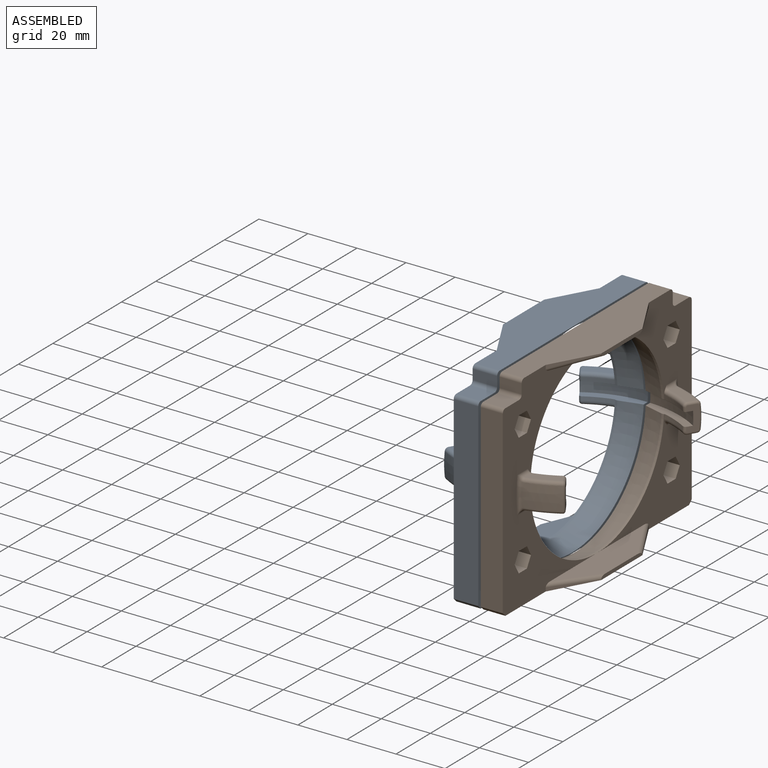
[diagram: assembled view]
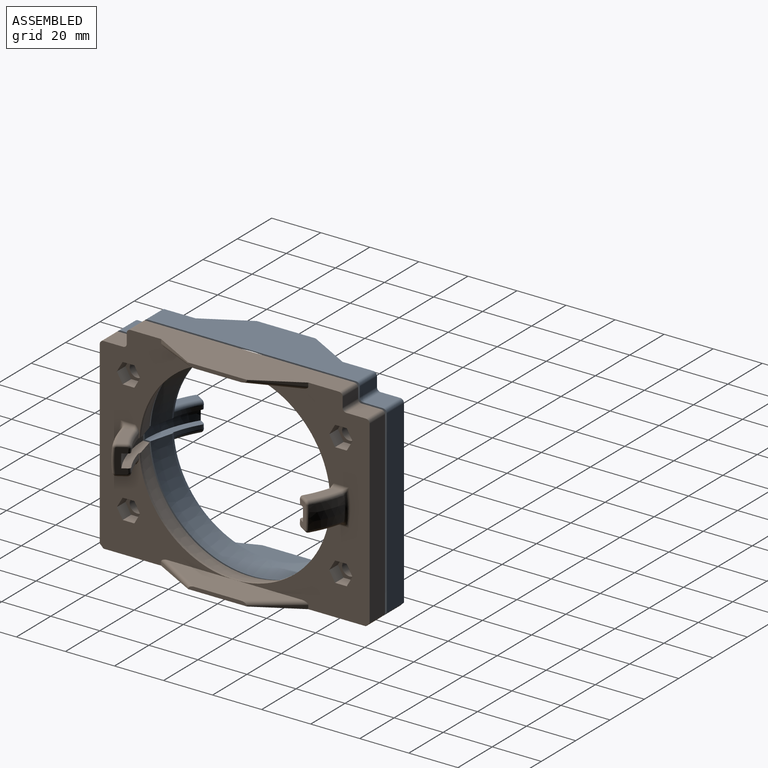
[diagram: assembled view, second angle]
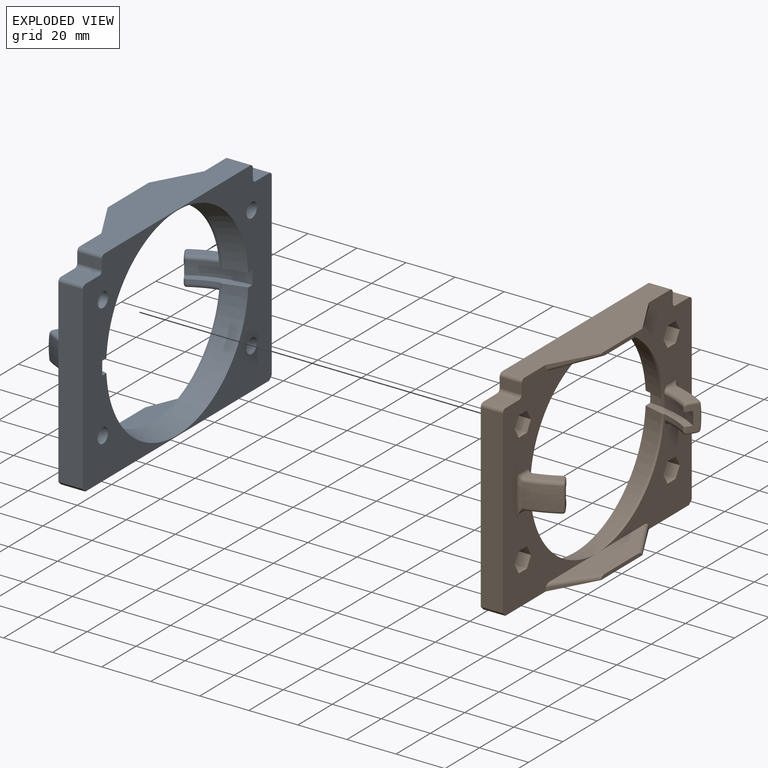
[diagram: exploded view]
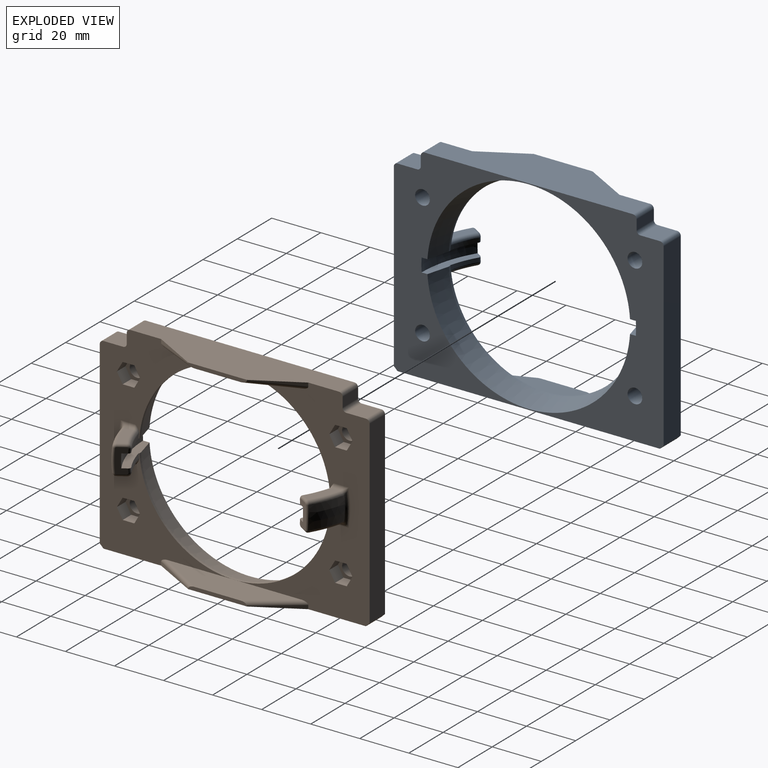
[diagram: exploded view, second angle]
FCSTD DOCUMENT  (FreeCAD 1.0R39319 (Git))
Label: Assembly_Flight-Cam-Screen
License: All rights reserved
LicenseURL: https://en.wikipedia.org/wiki/All_rights_reserved
objects: App::FeaturePython×5, App::Link×3, Assembly::AssemblyLink×1, Assembly::JointGroup×1, Assembly::AssemblyObject×1
EXTERNAL_REF file=../Part/Print/EyeScreen.FCStd obj=Part
EXTERNAL_REF file=../Part/Print/EyeScreen_Clamp.FCStd obj=Part
EXTERNAL_REF file=Assembly_Flight-Cam.FCStd obj=Assembly
EXTERNAL_REF file=Assembly_Flight-Cam.FCStd obj=IMX296_MPI_Eyeball_6mm001

FEATURE [App::Link] EyeScreen
  LinkPlacement = pos=(0,0,0) rot=(0,0,1;3.14159rad)
  LinkedObject = -> <external ../Part/Print/EyeScreen.FCStd>#Part
  Placement = pos=(0,0,0) rot=(0,0,1;3.14159rad)
FEATURE [App::Link] EyeScreen_Clamp
  LinkPlacement = pos=(6.23e-14,1.5e-13,-2.196e-13) rot=(0,0,1;0rad)
  LinkedObject = -> <external ../Part/Print/EyeScreen_Clamp.FCStd>#Part
  Placement = pos=(6.23e-14,1.5e-13,-2.196e-13) rot=(0,0,1;0rad)
FEATURE [App::FeaturePython] GroundedJoint  # Assembly grounded joint (typed FeaturePython)
  ObjectToGround = -> EyeScreen
FEATURE [App::FeaturePython] Joint  label="Distance"  # Assembly joint (typed FeaturePython)
  Activated = true
  AngleMax = 0
  AngleMin = 0
  Detach1 = false
  Detach2 = false
  Distance = -1
  Distance2 = 0
  EnableAngleMax = false
  EnableAngleMin = false
  EnableLengthMax = false
  EnableLengthMin = false
  JointType = 5 (Distance)
  LengthMax = 0
  LengthMin = 0
  Placement1 = pos=(1,-2.077e-13,-1.63309) rot=(0.707107,0,0.707107;3.14159rad)
  Placement2 = pos=(4.82e-14,-4.807e-13,-1.66411) rot=(0.707107,0,-0.707107;3.14159rad)
  Reference1 = -> Assembly [EyeScreen_Clamp.Body.Face3,EyeScreen_Clamp.Body.Edge29]
  Reference2 = -> Assembly [EyeScreen.Body.Face105,EyeScreen.Body.Vertex111]
FEATURE [App::FeaturePython] Joint001  label="Cylindrical"  # Assembly joint (typed FeaturePython)
  Activated = true
  AngleMax = 0
  AngleMin = 0
  Detach1 = false
  Detach2 = false
  Distance = 0
  Distance2 = 0
  EnableAngleMax = false
  EnableAngleMin = false
  EnableLengthMax = false
  EnableLengthMin = false
  JointType = 2 (Cylindrical)
  LengthMax = 0
  LengthMin = 0
  Placement1 = pos=(3,-43.3013,25) rot=(0.57735,-0.57735,-0.57735;2.0944rad)
  Placement2 = pos=(5,43.3013,25) rot=(0.57735,0.57735,0.57735;2.0944rad)
  Reference1 = -> Assembly [EyeScreen_Clamp.Body.Face32,EyeScreen_Clamp.Body.Face32]
  Reference2 = -> Assembly [EyeScreen.Body.Face28,EyeScreen.Body.Face28]
FEATURE [App::FeaturePython] Joint002  label="Cylindrical001"  # Assembly joint (typed FeaturePython)
  Activated = true
  AngleMax = 0
  AngleMin = 0
  Detach1 = false
  Detach2 = false
  Distance = 0
  Distance2 = 0
  EnableAngleMax = false
  EnableAngleMin = false
  EnableLengthMax = false
  EnableLengthMin = false
  JointType = 2 (Cylindrical)
  LengthMax = 0
  LengthMin = 0
  Placement1 = pos=(3,-43.3013,-25) rot=(0.57735,-0.57735,0.57735;4.18879rad)
  Placement2 = pos=(5,43.3013,-25) rot=(0.57735,0.57735,-0.57735;4.18879rad)
  Reference1 = -> Assembly [EyeScreen_Clamp.Body.Face31,EyeScreen_Clamp.Body.Face31]
  Reference2 = -> Assembly [EyeScreen.Body.Face29,EyeScreen.Body.Face29]
FEATURE [App::Link] IMX296_MPI_Eyeball_6mm001  label="IMX296-MPI_Eyeball_6mm001"
  LinkedObject = -> <external Assembly_Flight-Cam.FCStd>#IMX296_MPI_Eyeball_6mm001
FEATURE [Assembly::AssemblyLink] Assembly_Flight_Cam  label="Assembly_Flight-Cam"
  Group = -> [IMX296_MPI_Eyeball_6mm001]
  LinkedObject = -> <external Assembly_Flight-Cam.FCStd>#Assembly
  Origin = -> Origin001
  Placement = pos=(9.2e-15,0,0) rot=(0,-1,0;1.5708rad)
  Rigid = true
FEATURE [App::FeaturePython] Joint003  label="Ball"  # Assembly joint (typed FeaturePython)
  Activated = true
  AngleMax = 0
  AngleMin = 0
  Detach1 = false
  Detach2 = false
  Distance = 0
  Distance2 = 0
  EnableAngleMax = false
  EnableAngleMin = false
  EnableLengthMax = false
  EnableLengthMin = false
  JointType = 4 (Ball)
  LengthMax = 0
  LengthMin = 0
  Placement1 = pos=(0,0,0) rot=(1,0,0;3.14159rad)
  Placement2 = pos=(-9.2e-15,0,0) rot=(0.707107,0,0.707107;3.14159rad)
  Reference1 = -> Assembly [Assembly_Flight_Cam.IMX296_MPI_Eyeball_6mm001.Face1,Assembly_Flight_Cam.IMX296_MPI_Eyeball_6mm001.Face1]
  Reference2 = -> Assembly [EyeScreen.Body.Edge142,EyeScreen.Body.Edge142]
FEATURE [Assembly::JointGroup] Joints
  Group = -> [GroundedJoint,Joint,Joint001,Joint002,Joint003]
FEATURE [Assembly::AssemblyObject] Assembly  label="Assembly_Flight-Cam-Screen"
  Group = -> [Joints,EyeScreen,EyeScreen_Clamp,GroundedJoint,Joint,Joint001,Joint002,Assembly_Flight_Cam,Joint003]
  Origin = -> Origin
  Type = Assembly_Flight-Cam-Screen

RESOLVED EXTERNAL PARTS (link-assembly join: the EXTERNAL_REF files above that resolve inside this repo's crawl, each included once):
---- part ../Part/Print/EyeScreen.FCStd = doc fcstd_b461cd2e0dd9 ----
FCSTD DOCUMENT  (FreeCAD 1.0R39319 (Git))
Label: EyeScreen
License: All rights reserved
LicenseURL: https://en.wikipedia.org/wiki/All_rights_reserved
objects: Sketcher::SketchObject×10, PartDesign::Fillet×6, PartDesign::Pocket×4, PartDesign::Mirrored×3, PartDesign::Pad×2, PartDesign::Groove×2, PartDesign::CoordinateSystem×2, PartDesign::Chamfer×1, PartDesign::Revolution×1, PartDesign::Body×1, App::Part×1
note: 77 computed .brp shape members not serialized (recipe doc carries the construction recipe); baked Part::Feature solids carry a one-line shape summary decoded from their .brp

FEATURE [Sketcher::SketchObject] Sketch
  ArcFitTolerance = 1e-06
  AttachmentSupport = -> [YZ_Plane001]
  FullyConstrained = true
  MakeInternals = false
  MapMode = 5
  Placement = pos=(0,0,0) rot=(0.57735,0.57735,0.57735;2.0944rad)
  sketch-geometry (4):
    g0: LineSegment StartX=0 StartY=41.75 StartZ=0 EndX=0 EndY=-41.75 EndZ=0
    g1: LineSegment StartX=0 StartY=-41.75 StartZ=0 EndX=55 EndY=-41.75 EndZ=0
    g2: LineSegment StartX=55 StartY=-41.75 StartZ=0 EndX=55 EndY=41.75 EndZ=0
    g3: LineSegment StartX=55 StartY=41.75 StartZ=0 EndX=0 EndY=41.75 EndZ=0
  constraints (11):
    c: Coincident(g0,g1)
    c: Coincident(g1,g2)
    c: Coincident(g2,g3)
    c: Coincident(g3,g0)
    c: Vertical(g0)
    c: Horizontal(g1)
    c: Horizontal(g3)
    c: PointOnObject(g0,g-2)
    c: Distance(g1,g3) = 83.5
    c: Distance(g0,g2) = 55
    c: Symmetric(g2,g1,g-1)
FEATURE [PartDesign::Pad] Pad
  Direction = (1,0,0)
  Length = 10
  Length2 = 10
  Placement = pos=(0,0,0) rot=(1,1,1;2.0944rad)
  Profile = -> Sketch
  ReferenceAxis = -> Sketch [N_Axis]
  Refine = true
  Suppressed = false
  Type = 0
FEATURE [PartDesign::Chamfer] Chamfer
  Angle = 45
  Base = -> Pad [Edge5]
  BaseFeature = -> Pad
  ChamferType = 0
  FlipDirection = false
  Placement = pos=(0,0,0) rot=(1,1,1;2.0944rad)
  Refine = true
  Size = 1.5
  Size2 = 1
  SupportTransform = false
  Suppressed = false
  UseAllEdges = false
FEATURE [Sketcher::SketchObject] Sketch001
  ArcFitTolerance = 1e-06
  AttachmentSupport = -> [Chamfer]
  FullyConstrained = true
  MakeInternals = false
  MapMode = 5
  Placement = pos=(10,-2.2e-15,1.1e-15) rot=(0.57735,0.57735,0.57735;2.0944rad)
  sketch-geometry (2):
    g0: Circle CenterX=43.3013 CenterY=25 CenterZ=0 NormalX=0 NormalY=0 NormalZ=1 AngleXU=0 Radius=3
    g1: LineSegment [constr] StartX=43.3013 StartY=25 StartZ=0 EndX=0 EndY=0 EndZ=0
  constraints (5):
    c: Coincident(g1,g0)
    c: Coincident(g1,g-1)
    c: Angle(g-1,g1) = 0.523599
    c: Diameter(g0) = 6
    c: Distance(g0,g-1) = 50
FEATURE [PartDesign::Pocket] Pocket
  BaseFeature = -> Chamfer
  Direction = (-1,0,0)
  Length = 5
  Length2 = 5
  Placement = pos=(0,0,0) rot=(1,1,1;2.0944rad)
  Profile = -> Sketch001
  ReferenceAxis = -> Sketch001 [N_Axis]
  Refine = true
  Suppressed = false
  Type = 1
FEATURE [PartDesign::Mirrored] Mirrored
  BaseFeature = -> Pocket
  MirrorPlane = -> XY_Plane001
  Originals = -> [Pocket]
  Placement = pos=(0,0,0) rot=(1,1,1;2.0944rad)
  Refine = true
  Suppressed = false
  TransformMode = 0
FEATURE [Sketcher::SketchObject] Sketch002
  ArcFitTolerance = 1e-06
  AttachmentSupport = -> [YZ_Plane001]
  FullyConstrained = true
  MakeInternals = false
  MapMode = 5
  Placement = pos=(0,0,0) rot=(0.57735,0.57735,0.57735;2.0944rad)
  sketch-geometry (4):
    g0: ArcOfCircle CenterX=0 CenterY=1.83e-14 CenterZ=0 NormalX=0 NormalY=0 NormalZ=1 AngleXU=0 Radius=47 StartAngle=6.15518 EndAngle=6.41119
    g1: LineSegment StartX=40.0531 StartY=6 StartZ=0 EndX=46.6154 EndY=6 EndZ=0
    g2: LineSegment StartX=40.0531 StartY=-6 StartZ=0 EndX=46.6154 EndY=-6 EndZ=0
    g3: ArcOfCircle CenterX=0 CenterY=1.83e-14 CenterZ=0 NormalX=0 NormalY=0 NormalZ=1 AngleXU=0 Radius=40.5 StartAngle=6.13449 EndAngle=6.43188
  constraints (12):
    c: Coincident(g1,g0)
    c: Coincident(g2,g0)
    c: Distance(g2,g1) = 12
    c: Horizontal(g1)
    c: Symmetric(g0,g0,g-1)
    c: Horizontal(g2)
    c: Coincident(g3,g1)
    c: Coincident(g3,g2)
    c: Coincident(g3,g0)
    c: Coincident(g0,g-1)
    c: Radius(g3) = 40.5
    c: Radius(g0) = 47
FEATURE [PartDesign::Revolution] Revolution
  Angle = 32
  Angle2 = 60
  Axis = (0,0,1)
  Base = (0,0,0)
  BaseFeature = -> Mirrored
  Placement = pos=(0,0,0) rot=(1,1,1;2.0944rad)
  Profile = -> Sketch002
  ReferenceAxis = -> Sketch002 [V_Axis]
  Refine = true
  Reversed = true
  Suppressed = false
  Type = 0
FEATURE [Sketcher::SketchObject] Sketch003
  ArcFitTolerance = 1e-06
  AttachmentSupport = -> [XZ_Plane001]
  ExternalGeometry = -> [Revolution]
  FullyConstrained = true
  MakeInternals = false
  MapMode = 5
  Placement = pos=(0,0,0) rot=(1,0,0;1.5708rad)
  sketch-geometry (5):
    g0: LineSegment StartX=0 StartY=0 StartZ=0 EndX=0 EndY=41.3865 EndZ=0
    g1: LineSegment StartX=0 StartY=41.3865 StartZ=0 EndX=9 EndY=38.975 EndZ=0
    g2: LineSegment StartX=9 StartY=38.975 StartZ=0 EndX=10 EndY=38.975 EndZ=0
    g3: LineSegment StartX=10 StartY=38.975 StartZ=0 EndX=10 EndY=0 EndZ=0
    g4: LineSegment StartX=10 StartY=0 StartZ=0 EndX=0 EndY=0 EndZ=0
  constraints (14):
    c: Coincident(g-1,g0)
    c: PointOnObject(g0,g-2)
    c: Coincident(g0,g1)
    c: Coincident(g1,g2)
    c: Coincident(g2,g3)
    c: Vertical(g3)
    c: Coincident(g3,g4)
    c: Coincident(g4,g0)
    c: Horizontal(g4)
    c: PointOnObject(g2,g-3)
    c: Horizontal(g2)
    c: Distance(g1,g0) = 9
    c: Angle(g1,g4) = 0.261799
    c: Distance(g4,g2) = 38.975
FEATURE [PartDesign::Groove] Groove
  Angle = 360
  Angle2 = 60
  Axis = (1,0,0)
  Base = (0,0,0)
  BaseFeature = -> Revolution
  Placement = pos=(0,0,0) rot=(1,1,1;2.0944rad)
  Profile = -> Sketch003
  ReferenceAxis = -> X_Axis001
  Refine = true
  Suppressed = false
  Type = 0
FEATURE [Sketcher::SketchObject] Sketch004
  ArcFitTolerance = 1e-06
  AttachmentSupport = -> [YZ_Plane001]
  FullyConstrained = true
  MakeInternals = false
  MapMode = 5
  Placement = pos=(0,0,0) rot=(0.57735,0.57735,0.57735;2.0944rad)
FEATURE [Sketcher::SketchObject] Sketch005
  ArcFitTolerance = 1e-06
  AttachmentSupport = -> [Groove]
  ExternalGeometry = -> [Groove]
  FullyConstrained = true
  MakeInternals = false
  MapMode = 5
  Placement = pos=(-1.21e-14,7.5e-15,0) rot=(0.787007,0.436245,0.436245;1.80806rad)
  sketch-geometry (4):
    g0: LineSegment StartX=0 StartY=2.75 StartZ=0 EndX=0 EndY=-2.75 EndZ=0
    g1: LineSegment StartX=0 StartY=-2.75 StartZ=0 EndX=43.6635 EndY=-2.75 EndZ=0
    g2: LineSegment StartX=0 StartY=2.75 StartZ=0 EndX=43.6635 EndY=2.75 EndZ=0
    g3: ArcOfCircle CenterX=0 CenterY=0 CenterZ=0 NormalX=0 NormalY=0 NormalZ=1 AngleXU=0 Radius=43.75 StartAngle=6.22029 EndAngle=6.34608
  constraints (12):
    c: PointOnObject(g0,g-2)
    c: PointOnObject(g0,g-2)
    c: Coincident(g0,g1)
    c: Horizontal(g1)
    c: Coincident(g3,g2)
    c: Coincident(g1,g3)
    c: Coincident(g-1,g3)
    c: Distance(g3,g-4) = 3.25
    c: Distance(g-5,g1) = 3.25
    c: Horizontal(g2)
    c: Distance(g-3,g2) = 3.25
    c: Coincident(g2,g0)
FEATURE [PartDesign::Groove] Groove001
  Angle = 360
  Angle2 = 60
  Axis = (-2e-16,-1e-16,1)
  Base = (-1.21e-14,7.5e-15,0)
  BaseFeature = -> Groove
  Placement = pos=(0,0,0) rot=(1,1,1;2.0944rad)
  Profile = -> Sketch005
  ReferenceAxis = -> Sketch005 [V_Axis]
  Refine = true
  Suppressed = false
  Type = 0
FEATURE [Sketcher::SketchObject] Sketch006
  ArcFitTolerance = 1e-06
  AttachmentSupport = -> [Groove001]
  ExternalGeometry = -> [Groove001]
  FullyConstrained = true
  MakeInternals = false
  MapMode = 5
  Placement = pos=(10,-1.11e-14,5.6e-15) rot=(0.57735,0.57735,0.57735;2.0944rad)
  sketch-geometry (4):
    g0: LineSegment StartX=44 StartY=42.75 StartZ=0 EndX=44 EndY=34.75 EndZ=0
    g1: LineSegment StartX=44 StartY=34.75 StartZ=0 EndX=56 EndY=34.75 EndZ=0
    g2: LineSegment StartX=56 StartY=34.75 StartZ=0 EndX=56 EndY=42.75 EndZ=0
    g3: LineSegment StartX=56 StartY=42.75 StartZ=0 EndX=44 EndY=42.75 EndZ=0
  constraints (12):
    c: Coincident(g0,g1)
    c: Coincident(g1,g2)
    c: Coincident(g2,g3)
    c: Coincident(g3,g0)
    c: Vertical(g0)
    c: Vertical(g2)
    c: Horizontal(g1)
    c: Horizontal(g3)
    c: Distance(g3,g-3) = 1
    c: Distance(g2,g-4) = 1
    c: Distance(g3,g1) = 8
    c: Distance(g2,g0) = 12
FEATURE [PartDesign::Pocket] Pocket001
  BaseFeature = -> Groove001
  Direction = (-1,1e-15,1e-16)
  Length = 5
  Length2 = 5
  Placement = pos=(0,0,0) rot=(1,1,1;2.0944rad)
  Profile = -> Sketch006
  ReferenceAxis = -> Sketch006 [N_Axis]
  Refine = true
  Suppressed = false
  Type = 1
FEATURE [PartDesign::Fillet] Fillet
  Base = -> Pocket001 [Edge28,Edge27,Edge29]
  BaseFeature = -> Pocket001
  Placement = pos=(0,0,0) rot=(1,1,1;2.0944rad)
  Radius = 1.5
  Refine = true
  SupportTransform = false
  Suppressed = false
  UseAllEdges = false
FEATURE [PartDesign::Fillet] Fillet001
  Base = -> Fillet [Edge72,Edge77,Edge22,Edge44]
  BaseFeature = -> Fillet
  Placement = pos=(0,0,0) rot=(1,1,1;2.0944rad)
  Radius = 1.5
  Refine = true
  SupportTransform = false
  Suppressed = false
  UseAllEdges = false
FEATURE [PartDesign::Fillet] Fillet002
  Base = -> Fillet001 [Edge81]
  BaseFeature = -> Fillet001
  Placement = pos=(0,0,0) rot=(1,1,1;2.0944rad)
  Radius = 1
  Refine = true
  SupportTransform = false
  Suppressed = false
  UseAllEdges = false
FEATURE [PartDesign::Fillet] Fillet003
  Base = -> Fillet002 [Edge87,Edge91,Edge94]
  BaseFeature = -> Fillet002
  Placement = pos=(0,0,0) rot=(1,1,1;2.0944rad)
  Radius = 1.5
  Refine = true
  SupportTransform = false
  Suppressed = false
  UseAllEdges = false
FEATURE [Sketcher::SketchObject] Sketch007
  ArcFitTolerance = 1e-06
  AttachmentSupport = -> [XZ_Plane001]
  ExternalGeometry = -> [Fillet003]
  FullyConstrained = true
  MakeInternals = false
  MapMode = 5
  Placement = pos=(0,0,0) rot=(1,0,0;1.5708rad)
  sketch-geometry (4):
    g0: LineSegment StartX=10 StartY=-41.75 StartZ=0 EndX=20 EndY=-41.75 EndZ=0
    g1: LineSegment StartX=20 StartY=-41.75 StartZ=0 EndX=20 EndY=-40.25 EndZ=0
    g2: LineSegment StartX=20 StartY=-40.25 StartZ=0 EndX=10 EndY=-38.975 EndZ=0
    g3: LineSegment StartX=10 StartY=-38.975 StartZ=0 EndX=10 EndY=-41.75 EndZ=0
  constraints (10):
    c: Coincident(g-4,g0)
    c: Horizontal(g0)
    c: Coincident(g0,g1)
    c: Coincident(g1,g2)
    c: Coincident(g2,g-3)
    c: Coincident(g2,g3)
    c: Coincident(g3,g0)
    c: Vertical(g1)
    c: DistanceY(g1,g1) = 1.5
    c: Distance(g1,g3) = 10
FEATURE [PartDesign::Pad] Pad001
  BaseFeature = -> Fillet003
  Direction = (0,-1,2e-16)
  Length = 30
  Length2 = 10
  Placement = pos=(0,0,0) rot=(1,1,1;2.0944rad)
  Profile = -> Sketch007
  ReferenceAxis = -> Sketch007 [N_Axis]
  Refine = true
  Reversed = true
  Suppressed = false
  Type = 0
FEATURE [Sketcher::SketchObject] Sketch008
  ArcFitTolerance = 1e-06
  AttachmentSupport = -> [Pad001]
  ExternalGeometry = -> [Pad001]
  FullyConstrained = true
  MakeInternals = false
  MapMode = 5
  Placement = pos=(7.86e-14,-9.1e-14,-41.75) rot=(0.707107,0.707107,0;3.14159rad)
  sketch-geometry (3):
    g0: LineSegment StartX=30 StartY=20 StartZ=0 EndX=30 EndY=10 EndZ=0
    g1: LineSegment StartX=30 StartY=10 StartZ=0 EndX=12 EndY=20 EndZ=0
    g2: LineSegment StartX=12 StartY=20 StartZ=0 EndX=30 EndY=20 EndZ=0
  constraints (7):
    c: Coincident(g0,g-4)
    c: Coincident(g0,g1)
    c: Coincident(g2,g1)
    c: Coincident(g2,g0)
    c: Horizontal(g2)
    c: Coincident(g0,g-4)
    c: DistanceX(g2,g2) = 18
FEATURE [PartDesign::Mirrored] Mirrored001
  BaseFeature = -> Pad001
  MirrorPlane = -> XY_Plane001
  Originals = -> [Pad001]
  Placement = pos=(0,0,0) rot=(1,1,1;2.0944rad)
  Refine = true
  Suppressed = false
  TransformMode = 0
FEATURE [PartDesign::Pocket] Pocket002
  BaseFeature = -> Mirrored001
  Direction = (-1.9e-15,2.2e-15,1)
  Length = 3
  Length2 = 5
  Placement = pos=(0,0,0) rot=(1,1,1;2.0944rad)
  Profile = -> Sketch008
  ReferenceAxis = -> Sketch008 [N_Axis]
  Refine = true
  Suppressed = false
  Type = 1
FEATURE [PartDesign::Fillet] Fillet004
  Base = -> Pocket002 [Edge15]
  BaseFeature = -> Pocket002
  Placement = pos=(0,0,0) rot=(1,1,1;2.0944rad)
  Radius = 1.5
  Refine = true
  SupportTransform = false
  Suppressed = false
  UseAllEdges = false
FEATURE [PartDesign::Fillet] Fillet005
  Base = -> Fillet004 [Edge96]
  BaseFeature = -> Fillet004
  Placement = pos=(0,0,0) rot=(1,1,1;2.0944rad)
  Radius = 1.5
  Refine = true
  SupportTransform = false
  Suppressed = false
  UseAllEdges = false
FEATURE [Sketcher::SketchObject] Sketch009
  ArcFitTolerance = 1e-06
  AttachmentSupport = -> [Fillet005]
  FullyConstrained = true
  MakeInternals = false
  MapMode = 5
  Placement = pos=(9.25e-14,-9.56e-14,-41.75) rot=(0.707107,0.707107,0;3.14159rad)
  sketch-geometry (1):
    g0: Circle CenterX=50 CenterY=5 CenterZ=0 NormalX=0 NormalY=0 NormalZ=1 AngleXU=0 Radius=2.35
  constraints (3):
    c: Distance(g0,g-1) = 5
    c: DistanceX(g-1,g0) = 50
    c: Diameter(g0) = 4.7
FEATURE [PartDesign::Pocket] Pocket003
  BaseFeature = -> Fillet005
  Direction = (-2.2e-15,2.3e-15,1)
  Length = 15
  Length2 = 5
  Placement = pos=(0,0,0) rot=(1,1,1;2.0944rad)
  Profile = -> Sketch009
  ReferenceAxis = -> Sketch009 [N_Axis]
  Refine = true
  Suppressed = false
  Type = 0
FEATURE [PartDesign::Mirrored] Mirrored002
  BaseFeature = -> Pocket003
  MirrorPlane = -> XZ_Plane001
  Placement = pos=(0,0,0) rot=(1,1,1;2.0944rad)
  Refine = true
  Suppressed = false
  TransformMode = 1
FEATURE [PartDesign::Body] Body  label="EyeScreen001"
  AllowCompound = false
  Group = -> [Sketch,Pad,Chamfer,Sketch001,Pocket,Mirrored,Sketch002,Revolution,Sketch003,Groove,Sketch004,Sketch005,Groove001,Sketch006,Pocket001,Fillet,Fillet001,Fillet002,Fillet003,Sketch007,Pad001,Sketch008,Mirrored001,Pocket002,Fillet004,Fillet005,Sketch009,Pocket003,Mirrored002]
  Origin = -> Origin001
  Tip = -> Mirrored002
FEATURE [PartDesign::CoordinateSystem] center
  AttacherType = Attacher::AttachEngine3D
FEATURE [PartDesign::CoordinateSystem] stack_reference_point
  AttacherType = Attacher::AttachEngine3D
  AttachmentSupport = -> [Mirrored002]
  MapMode = 11
  Placement = pos=(5,-50,-41.75) rot=(0,0,1;0rad)
FEATURE [App::Part] Part  label="EyeScreen"
  Group = -> [Body,center,stack_reference_point]
  Origin = -> Origin
---- part ../Part/Print/EyeScreen_Clamp.FCStd = doc fcstd_b97da95b7791 ----
FCSTD DOCUMENT  (FreeCAD 1.0R39319 (Git))
Label: EyeScreen_Clamp
License: All rights reserved
LicenseURL: https://en.wikipedia.org/wiki/All_rights_reserved
objects: Sketcher::SketchObject×12, PartDesign::Fillet×6, PartDesign::Pocket×5, PartDesign::Mirrored×3, PartDesign::Pad×2, PartDesign::Groove×2, PartDesign::Chamfer×1, PartDesign::Revolution×1, PartDesign::PolarPattern×1, PartDesign::Body×1, PartDesign::CoordinateSystem×1, App::Part×1
note: 85 computed .brp shape members not serialized (recipe doc carries the construction recipe); baked Part::Feature solids carry a one-line shape summary decoded from their .brp

FEATURE [Sketcher::SketchObject] Sketch
  ArcFitTolerance = 1e-06
  AttachmentSupport = -> [YZ_Plane001]
  FullyConstrained = true
  MakeInternals = false
  MapMode = 5
  Placement = pos=(0,0,0) rot=(0.57735,0.57735,0.57735;2.0944rad)
  sketch-geometry (4):
    g0: LineSegment StartX=0 StartY=41.75 StartZ=0 EndX=0 EndY=-41.75 EndZ=0
    g1: LineSegment StartX=0 StartY=-41.75 StartZ=0 EndX=55 EndY=-41.75 EndZ=0
    g2: LineSegment StartX=55 StartY=-41.75 StartZ=0 EndX=55 EndY=41.75 EndZ=0
    g3: LineSegment StartX=55 StartY=41.75 StartZ=0 EndX=0 EndY=41.75 EndZ=0
  constraints (11):
    c: Coincident(g0,g1)
    c: Coincident(g1,g2)
    c: Coincident(g2,g3)
    c: Coincident(g3,g0)
    c: Vertical(g0)
    c: Horizontal(g1)
    c: Horizontal(g3)
    c: PointOnObject(g0,g-2)
    c: Distance(g1,g3) = 83.5
    c: Distance(g0,g2) = 55
    c: Symmetric(g2,g1,g-1)
FEATURE [PartDesign::Pad] Pad
  Direction = (1,0,0)
  Length = 10
  Length2 = 10
  Placement = pos=(0,0,0) rot=(1,1,1;2.0944rad)
  Profile = -> Sketch
  ReferenceAxis = -> Sketch [N_Axis]
  Refine = true
  Suppressed = false
  Type = 0
FEATURE [PartDesign::Chamfer] Chamfer
  Angle = 45
  Base = -> Pad [Edge5]
  BaseFeature = -> Pad
  ChamferType = 0
  FlipDirection = false
  Placement = pos=(0,0,0) rot=(1,1,1;2.0944rad)
  Refine = true
  Size = 1.5
  Size2 = 1
  SupportTransform = false
  Suppressed = false
  UseAllEdges = false
FEATURE [Sketcher::SketchObject] Sketch001
  ArcFitTolerance = 1e-06
  AttachmentSupport = -> [Chamfer]
  FullyConstrained = true
  MakeInternals = false
  MapMode = 5
  Placement = pos=(10,0,0) rot=(0.57735,0.57735,0.57735;2.0944rad)
  sketch-geometry (2):
    g0: Circle CenterX=43.3013 CenterY=25 CenterZ=0 NormalX=0 NormalY=0 NormalZ=1 AngleXU=0 Radius=3
    g1: LineSegment [constr] StartX=43.3013 StartY=25 StartZ=0 EndX=0 EndY=0 EndZ=0
  constraints (5):
    c: Coincident(g1,g0)
    c: Coincident(g1,g-1)
    c: Angle(g-1,g1) = 0.523599
    c: Diameter(g0) = 6
    c: Distance(g0,g-1) = 50
FEATURE [PartDesign::Pocket] Pocket
  BaseFeature = -> Chamfer
  Direction = (-1,0,0)
  Length = 5
  Length2 = 5
  Placement = pos=(0,0,0) rot=(1,1,1;2.0944rad)
  Profile = -> Sketch001
  ReferenceAxis = -> Sketch001 [N_Axis]
  Refine = true
  Suppressed = false
  Type = 1
FEATURE [PartDesign::Mirrored] Mirrored
  BaseFeature = -> Pocket
  MirrorPlane = -> XY_Plane001
  Originals = -> [Pocket]
  Placement = pos=(0,0,0) rot=(1,1,1;2.0944rad)
  Refine = true
  Suppressed = false
  TransformMode = 0
FEATURE [Sketcher::SketchObject] Sketch002
  ArcFitTolerance = 1e-06
  AttachmentSupport = -> [YZ_Plane001]
  FullyConstrained = true
  MakeInternals = false
  MapMode = 5
  Placement = pos=(0,0,0) rot=(0.57735,0.57735,0.57735;2.0944rad)
  sketch-geometry (4):
    g0: ArcOfCircle CenterX=0 CenterY=1.83e-14 CenterZ=0 NormalX=0 NormalY=0 NormalZ=1 AngleXU=0 Radius=47 StartAngle=6.15518 EndAngle=6.41119
    g1: LineSegment StartX=40.0531 StartY=6 StartZ=0 EndX=46.6154 EndY=6 EndZ=0
    g2: LineSegment StartX=40.0531 StartY=-6 StartZ=0 EndX=46.6154 EndY=-6 EndZ=0
    g3: ArcOfCircle CenterX=0 CenterY=1.83e-14 CenterZ=0 NormalX=0 NormalY=0 NormalZ=1 AngleXU=0 Radius=40.5 StartAngle=6.13449 EndAngle=6.43188
  constraints (12):
    c: Coincident(g1,g0)
    c: Coincident(g2,g0)
    c: Distance(g2,g1) = 12
    c: Horizontal(g1)
    c: Symmetric(g0,g0,g-1)
    c: Horizontal(g2)
    c: Coincident(g3,g1)
    c: Coincident(g3,g2)
    c: Coincident(g3,g0)
    c: Coincident(g0,g-1)
    c: Radius(g3) = 40.5
    c: Radius(g0) = 47
FEATURE [PartDesign::Revolution] Revolution
  Angle = 32
  Angle2 = 60
  Axis = (0,0,1)
  Base = (0,0,0)
  BaseFeature = -> Mirrored
  Placement = pos=(0,0,0) rot=(1,1,1;2.0944rad)
  Profile = -> Sketch002
  ReferenceAxis = -> Sketch002 [V_Axis]
  Refine = true
  Reversed = true
  Suppressed = false
  Type = 0
FEATURE [Sketcher::SketchObject] Sketch003
  ArcFitTolerance = 1e-06
  AttachmentSupport = -> [XZ_Plane001]
  ExternalGeometry = -> [Revolution]
  FullyConstrained = true
  MakeInternals = false
  MapMode = 5
  Placement = pos=(0,0,0) rot=(1,0,0;1.5708rad)
  sketch-geometry (5):
    g0: LineSegment StartX=0 StartY=0 StartZ=0 EndX=0 EndY=41.3865 EndZ=0
    g1: LineSegment StartX=0 StartY=41.3865 StartZ=0 EndX=9 EndY=38.975 EndZ=0
    g2: LineSegment StartX=9 StartY=38.975 StartZ=0 EndX=10 EndY=38.975 EndZ=0
    g3: LineSegment StartX=10 StartY=38.975 StartZ=0 EndX=10 EndY=0 EndZ=0
    g4: LineSegment StartX=10 StartY=0 StartZ=0 EndX=0 EndY=0 EndZ=0
  constraints (14):
    c: Coincident(g-1,g0)
    c: PointOnObject(g0,g-2)
    c: Coincident(g0,g1)
    c: Coincident(g1,g2)
    c: Coincident(g2,g3)
    c: Vertical(g3)
    c: Coincident(g3,g4)
    c: Coincident(g4,g0)
    c: Horizontal(g4)
    c: PointOnObject(g2,g-3)
    c: Horizontal(g2)
    c: Distance(g1,g0) = 9
    c: Angle(g1,g4) = 0.261799
    c: Distance(g4,g2) = 38.975
FEATURE [PartDesign::Groove] Groove
  Angle = 360
  Angle2 = 60
  Axis = (1,0,0)
  Base = (0,0,0)
  BaseFeature = -> Revolution
  Placement = pos=(0,0,0) rot=(1,1,1;2.0944rad)
  Profile = -> Sketch003
  ReferenceAxis = -> X_Axis001
  Refine = true
  Suppressed = false
  Type = 0
FEATURE [Sketcher::SketchObject] Sketch004
  ArcFitTolerance = 1e-06
  AttachmentSupport = -> [YZ_Plane001]
  FullyConstrained = true
  MakeInternals = false
  MapMode = 5
  Placement = pos=(0,0,0) rot=(0.57735,0.57735,0.57735;2.0944rad)
FEATURE [Sketcher::SketchObject] Sketch005
  ArcFitTolerance = 1e-06
  AttachmentSupport = -> [Groove]
  ExternalGeometry = -> [Groove]
  FullyConstrained = true
  MakeInternals = false
  MapMode = 5
  Placement = pos=(0,0,0) rot=(0.787007,0.436245,0.436245;1.80806rad)
  sketch-geometry (4):
    g0: LineSegment StartX=0 StartY=2.75 StartZ=0 EndX=0 EndY=-2.75 EndZ=0
    g1: LineSegment StartX=0 StartY=-2.75 StartZ=0 EndX=43.6635 EndY=-2.75 EndZ=0
    g2: LineSegment StartX=0 StartY=2.75 StartZ=0 EndX=43.6635 EndY=2.75 EndZ=0
    g3: ArcOfCircle CenterX=0 CenterY=0 CenterZ=0 NormalX=0 NormalY=0 NormalZ=1 AngleXU=0 Radius=43.75 StartAngle=6.22029 EndAngle=6.34608
  constraints (12):
    c: PointOnObject(g0,g-2)
    c: PointOnObject(g0,g-2)
    c: Coincident(g0,g1)
    c: Horizontal(g1)
    c: Coincident(g3,g2)
    c: Coincident(g1,g3)
    c: Coincident(g-1,g3)
    c: Distance(g3,g-4) = 3.25
    c: Distance(g-5,g1) = 3.25
    c: Horizontal(g2)
    c: Distance(g-3,g2) = 3.25
    c: Coincident(g2,g0)
FEATURE [PartDesign::Groove] Groove001
  Angle = 360
  Angle2 = 60
  Axis = (-2e-16,-1e-16,1)
  Base = (-1.51e-14,9.4e-15,0)
  BaseFeature = -> Groove
  Placement = pos=(0,0,0) rot=(1,1,1;2.0944rad)
  Profile = -> Sketch005
  ReferenceAxis = -> Sketch005 [V_Axis]
  Refine = true
  Suppressed = false
  Type = 0
FEATURE [Sketcher::SketchObject] Sketch006
  ArcFitTolerance = 1e-06
  AttachmentSupport = -> [Groove001]
  ExternalGeometry = -> [Groove001]
  FullyConstrained = true
  MakeInternals = false
  MapMode = 5
  Placement = pos=(10,0,0) rot=(0.57735,0.57735,0.57735;2.0944rad)
  sketch-geometry (4):
    g0: LineSegment StartX=44 StartY=42.75 StartZ=0 EndX=44 EndY=34.75 EndZ=0
    g1: LineSegment StartX=44 StartY=34.75 StartZ=0 EndX=56 EndY=34.75 EndZ=0
    g2: LineSegment StartX=56 StartY=34.75 StartZ=0 EndX=56 EndY=42.75 EndZ=0
    g3: LineSegment StartX=56 StartY=42.75 StartZ=0 EndX=44 EndY=42.75 EndZ=0
  constraints (12):
    c: Coincident(g0,g1)
    c: Coincident(g1,g2)
    c: Coincident(g2,g3)
    c: Coincident(g3,g0)
    c: Vertical(g0)
    c: Vertical(g2)
    c: Horizontal(g1)
    c: Horizontal(g3)
    c: Distance(g3,g-3) = 1
    c: Distance(g2,g-4) = 1
    c: Distance(g3,g1) = 8
    c: Distance(g2,g0) = 12
FEATURE [PartDesign::Pocket] Pocket001
  BaseFeature = -> Groove001
  Direction = (-1,1e-15,1e-16)
  Length = 5
  Length2 = 5
  Placement = pos=(0,0,0) rot=(1,1,1;2.0944rad)
  Profile = -> Sketch006
  ReferenceAxis = -> Sketch006 [N_Axis]
  Refine = true
  Suppressed = false
  Type = 1
FEATURE [PartDesign::Fillet] Fillet
  Base = -> Pocket001 [Edge28,Edge27,Edge29]
  BaseFeature = -> Pocket001
  Placement = pos=(0,0,0) rot=(1,1,1;2.0944rad)
  Radius = 1.5
  Refine = true
  SupportTransform = false
  Suppressed = false
  UseAllEdges = false
FEATURE [PartDesign::Fillet] Fillet001
  Base = -> Fillet [Edge72,Edge77,Edge22,Edge44]
  BaseFeature = -> Fillet
  Placement = pos=(0,0,0) rot=(1,1,1;2.0944rad)
  Radius = 1.5
  Refine = true
  SupportTransform = false
  Suppressed = false
  UseAllEdges = false
FEATURE [PartDesign::Fillet] Fillet002
  Base = -> Fillet001 [Edge81]
  BaseFeature = -> Fillet001
  Placement = pos=(0,0,0) rot=(1,1,1;2.0944rad)
  Radius = 1
  Refine = true
  SupportTransform = false
  Suppressed = false
  UseAllEdges = false
FEATURE [PartDesign::Fillet] Fillet003
  Base = -> Fillet002 [Edge87,Edge91,Edge94]
  BaseFeature = -> Fillet002
  Placement = pos=(0,0,0) rot=(1,1,1;2.0944rad)
  Radius = 1.5
  Refine = true
  SupportTransform = false
  Suppressed = false
  UseAllEdges = false
FEATURE [Sketcher::SketchObject] Sketch007
  ArcFitTolerance = 1e-06
  AttachmentSupport = -> [XZ_Plane001]
  ExternalGeometry = -> [Fillet003]
  FullyConstrained = true
  MakeInternals = false
  MapMode = 5
  Placement = pos=(0,0,0) rot=(1,0,0;1.5708rad)
  sketch-geometry (4):
    g0: LineSegment StartX=10 StartY=-41.75 StartZ=0 EndX=20 EndY=-41.75 EndZ=0
    g1: LineSegment StartX=20 StartY=-41.75 StartZ=0 EndX=20 EndY=-40.25 EndZ=0
    g2: LineSegment StartX=20 StartY=-40.25 StartZ=0 EndX=10 EndY=-38.975 EndZ=0
    g3: LineSegment StartX=10 StartY=-38.975 StartZ=0 EndX=10 EndY=-41.75 EndZ=0
  constraints (10):
    c: Coincident(g-4,g0)
    c: Horizontal(g0)
    c: Coincident(g0,g1)
    c: Coincident(g1,g2)
    c: Coincident(g2,g-3)
    c: Coincident(g2,g3)
    c: Coincident(g3,g0)
    c: Vertical(g1)
    c: DistanceY(g1,g1) = 1.5
    c: Distance(g1,g3) = 10
FEATURE [PartDesign::Pad] Pad001
  BaseFeature = -> Fillet003
  Direction = (0,-1,2e-16)
  Length = 30
  Length2 = 10
  Placement = pos=(0,0,0) rot=(1,1,1;2.0944rad)
  Profile = -> Sketch007
  ReferenceAxis = -> Sketch007 [N_Axis]
  Refine = true
  Reversed = true
  Suppressed = false
  Type = 0
FEATURE [Sketcher::SketchObject] Sketch008
  ArcFitTolerance = 1e-06
  AttachmentSupport = -> [Pad001]
  ExternalGeometry = -> [Pad001]
  FullyConstrained = true
  MakeInternals = false
  MapMode = 5
  Placement = pos=(7.39e-14,-8.64e-14,-41.75) rot=(0.707107,0.707107,0;3.14159rad)
  sketch-geometry (3):
    g0: LineSegment StartX=30 StartY=20 StartZ=0 EndX=30 EndY=10 EndZ=0
    g1: LineSegment StartX=30 StartY=10 StartZ=0 EndX=12 EndY=20 EndZ=0
    g2: LineSegment StartX=12 StartY=20 StartZ=0 EndX=30 EndY=20 EndZ=0
  constraints (7):
    c: Coincident(g0,g-4)
    c: Coincident(g0,g1)
    c: Coincident(g2,g1)
    c: Coincident(g2,g0)
    c: Horizontal(g2)
    c: Coincident(g0,g-4)
    c: DistanceX(g2,g2) = 18
FEATURE [PartDesign::Mirrored] Mirrored001
  BaseFeature = -> Pad001
  MirrorPlane = -> XY_Plane001
  Originals = -> [Pad001]
  Placement = pos=(0,0,0) rot=(1,1,1;2.0944rad)
  Refine = true
  Suppressed = false
  TransformMode = 0
FEATURE [PartDesign::Pocket] Pocket002
  BaseFeature = -> Mirrored001
  Direction = (-1.9e-15,2.2e-15,1)
  Length = 3
  Length2 = 5
  Placement = pos=(0,0,0) rot=(1,1,1;2.0944rad)
  Profile = -> Sketch008
  ReferenceAxis = -> Sketch008 [N_Axis]
  Refine = true
  Suppressed = false
  Type = 1
FEATURE [PartDesign::Fillet] Fillet004
  Base = -> Pocket002 [Edge15]
  BaseFeature = -> Pocket002
  Placement = pos=(0,0,0) rot=(1,1,1;2.0944rad)
  Radius = 1.5
  Refine = true
  SupportTransform = false
  Suppressed = false
  UseAllEdges = false
FEATURE [PartDesign::Fillet] Fillet005
  Base = -> Fillet004 [Edge96]
  BaseFeature = -> Fillet004
  Placement = pos=(0,0,0) rot=(1,1,1;2.0944rad)
  Radius = 1.5
  Refine = true
  SupportTransform = false
  Suppressed = false
  UseAllEdges = false
FEATURE [Sketcher::SketchObject] Sketch009
  ArcFitTolerance = 1e-06
  AttachmentSupport = -> [Fillet005]
  FullyConstrained = true
  MakeInternals = false
  MapMode = 5
  Placement = pos=(7.39e-14,-8.64e-14,-41.75) rot=(0.707107,0.707107,0;3.14159rad)
  sketch-geometry (1):
    g0: Circle CenterX=50 CenterY=5 CenterZ=0 NormalX=0 NormalY=0 NormalZ=1 AngleXU=0 Radius=2.35
  constraints (3):
    c: Distance(g0,g-1) = 5
    c: DistanceX(g-1,g0) = 50
    c: Diameter(g0) = 4.7
FEATURE [PartDesign::Mirrored] Mirrored002
  BaseFeature = -> Fillet005
  MirrorPlane = -> XZ_Plane001
  Placement = pos=(0,0,0) rot=(1,1,1;2.0944rad)
  Refine = true
  Suppressed = false
  TransformMode = 1
FEATURE [Sketcher::SketchObject] Sketch010
  ArcFitTolerance = 1e-06
  AttachmentSupport = -> [Pocket]
  ExternalGeometry = -> [Pocket]
  FullyConstrained = true
  MakeInternals = false
  MapMode = 5
  Placement = pos=(10,0,0) rot=(0.57735,0.57735,0.57735;2.0944rad)
  sketch-geometry (7):
    g0: LineSegment StartX=45.6763 StartY=29.1136 StartZ=0 EndX=40.9263 EndY=29.1136 EndZ=0
    g1: LineSegment StartX=40.9263 StartY=29.1136 StartZ=0 EndX=38.5513 EndY=25 EndZ=0
    g2: LineSegment StartX=38.5513 StartY=25 StartZ=0 EndX=40.9263 EndY=20.8864 EndZ=0
    g3: LineSegment StartX=40.9263 StartY=20.8864 StartZ=0 EndX=45.6763 EndY=20.8864 EndZ=0
    g4: LineSegment StartX=45.6763 StartY=20.8864 StartZ=0 EndX=48.0513 EndY=25 EndZ=0
    g5: LineSegment StartX=48.0513 StartY=25 StartZ=0 EndX=45.6763 EndY=29.1136 EndZ=0
    g6: Circle [constr] CenterX=43.3013 CenterY=25 CenterZ=0 NormalX=0 NormalY=0 NormalZ=1 AngleXU=0 Radius=4.75
  constraints (16):
    c: Coincident(g0,g1)
    c: Coincident(g1,g2)
    c: Coincident(g2,g3)
    c: Coincident(g3,g4)
    c: Coincident(g4,g5)
    c: Coincident(g5,g0)
    c: Equal(g0, g1-g5) x5
    c: PointOnObject(g0,g6)
    c: PointOnObject(g1,g6)
    c: PointOnObject(g2,g6)
    c: PointOnObject(g3,g6)
    c: PointOnObject(g4,g6)
    c: PointOnObject(g5,g6)
    c: Coincident(g6,g-3)
    c: Horizontal(g0)
    c: Diameter(g6) = 9.5
FEATURE [PartDesign::Pocket] Pocket003
  BaseFeature = -> Mirrored002
  Direction = (-1,0,0)
  Length = 5
  Length2 = 5
  Placement = pos=(0,0,0) rot=(1,1,1;2.0944rad)
  Profile = -> Sketch010
  ReferenceAxis = -> Sketch010 [N_Axis]
  Refine = true
  Suppressed = false
  Type = 0
FEATURE [PartDesign::PolarPattern] PolarPattern
  Angle = 360
  Axis = -> Sketch010 [N_Axis]
  BaseFeature = -> Pocket003
  Mode = 1
  Occurrences = 6
  Offset = 60
  Originals = -> [Pocket003]
  Placement = pos=(0,0,0) rot=(1,1,1;2.0944rad)
  Refine = true
  Suppressed = false
  TransformMode = 0
FEATURE [Sketcher::SketchObject] Sketch011
  ArcFitTolerance = 1e-06
  AttachmentSupport = -> [XZ_Plane001]
  ExternalGeometry = -> [PolarPattern]
  FullyConstrained = true
  MakeInternals = false
  MapMode = 5
  Placement = pos=(0,0,0) rot=(1,0,0;1.5708rad)
  sketch-geometry (4):
    g0: LineSegment StartX=-1.155e-13 StartY=41.75 StartZ=0 EndX=-1.155e-13 EndY=-41.75 EndZ=0
    g1: LineSegment StartX=-1.155e-13 StartY=-41.75 StartZ=0 EndX=1 EndY=-41.75 EndZ=0
    g2: LineSegment StartX=1 StartY=-41.75 StartZ=0 EndX=1 EndY=41.75 EndZ=0
    g3: LineSegment StartX=1 StartY=41.75 StartZ=0 EndX=-1.155e-13 EndY=41.75 EndZ=0
  constraints (11):
    c: Coincident(g0,g1)
    c: Coincident(g1,g2)
    c: Coincident(g2,g3)
    c: Coincident(g3,g0)
    c: Vertical(g0)
    c: Vertical(g2)
    c: Horizontal(g1)
    c: Horizontal(g3)
    c: Coincident(g0,g-3)
    c: PointOnObject(g1,g-4)
    c: Distance(g0,g2) = 1
FEATURE [PartDesign::Pocket] Pocket004
  BaseFeature = -> PolarPattern
  Direction = (0,1,-2e-16)
  Length = 5
  Length2 = 5
  Midplane = true
  Placement = pos=(0,0,0) rot=(1,1,1;2.0944rad)
  Profile = -> Sketch011
  ReferenceAxis = -> Sketch011 [N_Axis]
  Refine = true
  Suppressed = false
  Type = 1
FEATURE [PartDesign::Body] Body  label="EyeScreen_Clamp001"
  AllowCompound = false
  Group = -> [Sketch,Pad,Chamfer,Sketch001,Pocket,Mirrored,Sketch002,Revolution,Sketch003,Groove,Sketch004,Sketch005,Groove001,Sketch006,Pocket001,Fillet,Fillet001,Fillet002,Fillet003,Sketch007,Pad001,Sketch008,Mirrored001,Pocket002,Fillet004,Fillet005,Sketch009,Mirrored002,Sketch010,Pocket003,PolarPattern,Sketch011,Pocket004]
  Origin = -> Origin001
  Tip = -> Pocket004
FEATURE [PartDesign::CoordinateSystem] center
  AttacherType = Attacher::AttachEngine3D
  AttachmentOffset = pos=(0,0,-1) rot=(0,0,1;0rad)
  AttachmentSupport = -> [Pocket004]
  MapMode = 11
  Placement = pos=(-1.15e-13,-2e-16,0) rot=(0.57735,-0.57735,0.57735;4.18879rad)
FEATURE [App::Part] Part  label="EyeScreen_Clamp"
  Group = -> [Body,center]
  Origin = -> Origin
